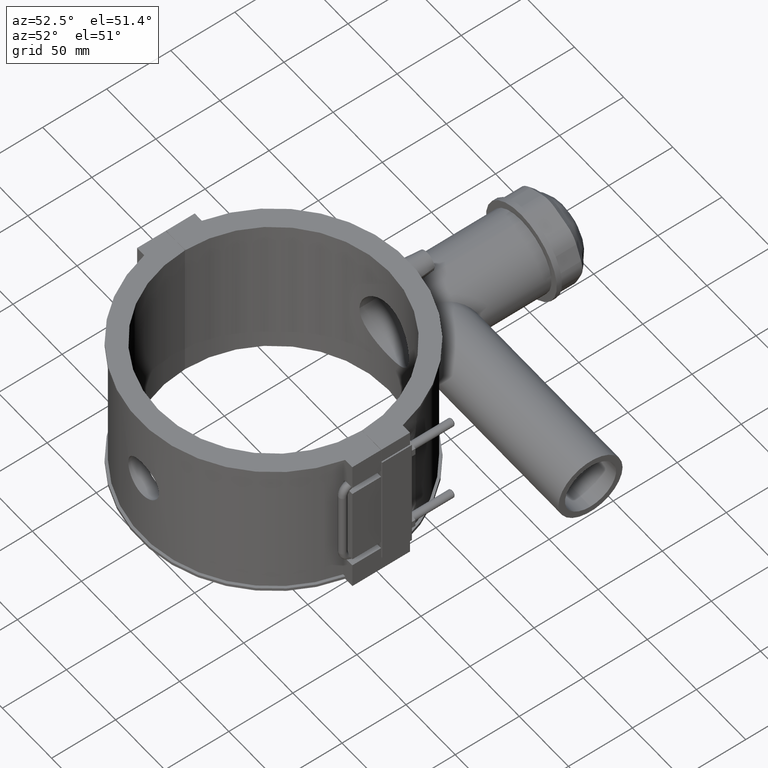
[diagram: clean part render]
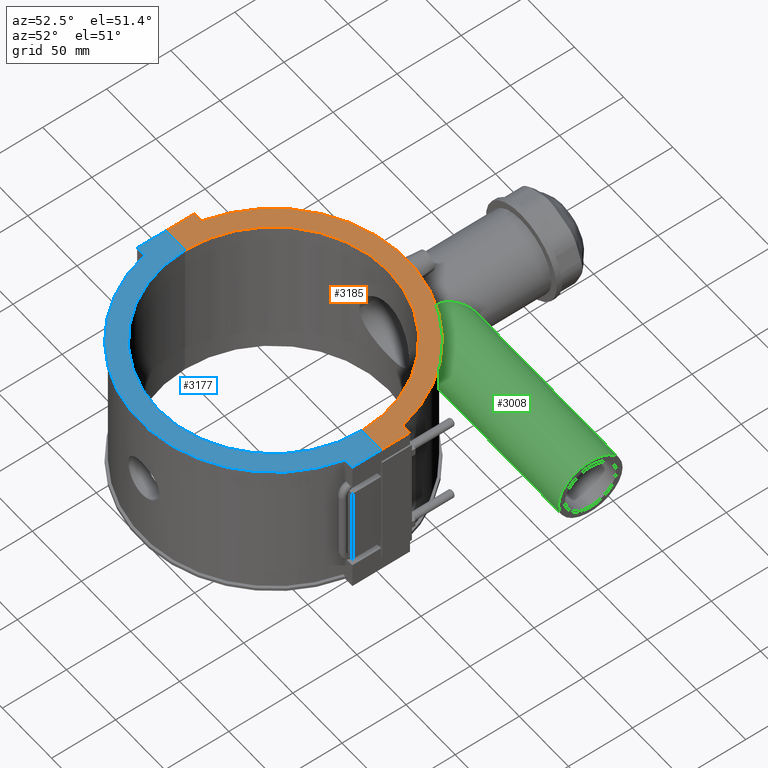
[diagram: same view with three faces highlighted in distinct colors, each labeled with its STEP entity id]
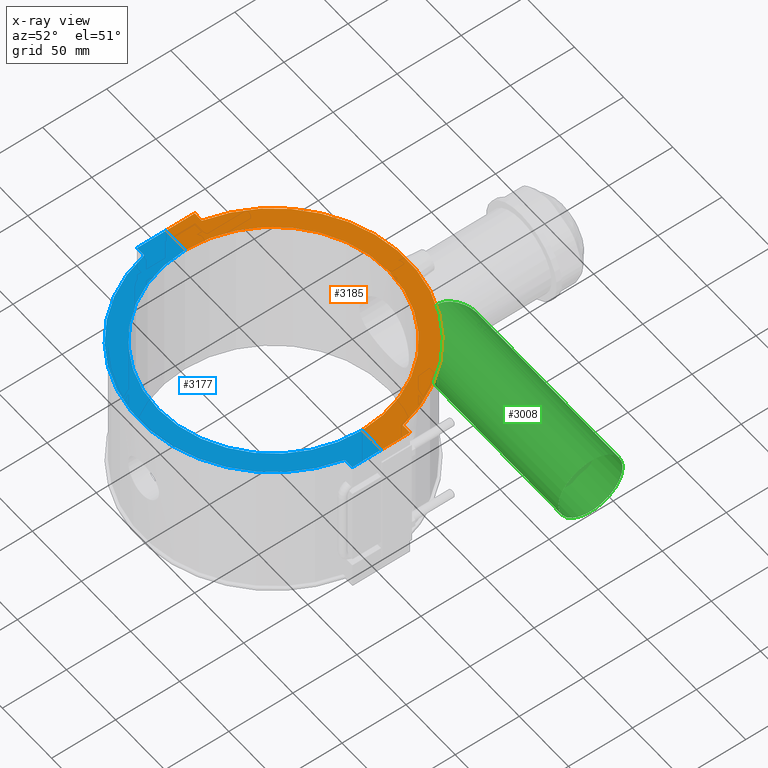
[diagram: x-ray of the same camera — body ghosted, the three highlighted faces saturated]
A machine part, auxiliary view with three faces highlighted in distinct colors.
The next image is the same camera in x-ray (body ghosted, the three faces saturated) — at least one of them is partly hidden behind the body in this view.
Their STEP definitions:

[orange] entity #3185 — the highlighted planar face has unit normal (0, 0, 1).
#135=LINE('',#5429,#414);
#168=LINE('',#5570,#447);
#211=LINE('',#5818,#490);
#213=LINE('',#5821,#492);
#268=LINE('',#6171,#547);
#313=LINE('',#6475,#592);
#414=VECTOR('',#3780,7.29534695523888);
#447=VECTOR('',#3837,22.45);
#490=VECTOR('',#3916,22.45);
#492=VECTOR('',#3920,7.29534695523888);
#547=VECTOR('',#4129,19.50001388889);
#592=VECTOR('',#4286,19.50001388889);
#707=PLANE('',#3466);
#753=CIRCLE('',#3287,104.652);
#810=CIRCLE('',#3463,90.);
#1043=FACE_OUTER_BOUND('',#1275,.T.);
#1275=EDGE_LOOP('',(#2950,#2951,#2952,#2953,#2954,#2955,#2956,#2957));
#1445=VERTEX_POINT('',#5403);
#1446=VERTEX_POINT('',#5404);
#1453=VERTEX_POINT('',#5427);
#1487=VERTEX_POINT('',#5568);
#1523=VERTEX_POINT('',#5815);
#1524=VERTEX_POINT('',#5817);
#1580=VERTEX_POINT('',#6169);
#1621=VERTEX_POINT('',#6474);
#1781=EDGE_CURVE('',#1445,#1446,#753,.T.);
#1794=EDGE_CURVE('',#1446,#1453,#135,.T.);
#1838=EDGE_CURVE('',#1453,#1487,#168,.T.);
#1890=EDGE_CURVE('',#1524,#1523,#211,.T.);
#1892=EDGE_CURVE('',#1523,#1445,#213,.T.);
#1982=EDGE_CURVE('',#1487,#1580,#268,.T.);
#2054=EDGE_CURVE('',#1621,#1524,#313,.T.);
#2060=EDGE_CURVE('',#1580,#1621,#810,.T.);
#2950=ORIENTED_EDGE('',*,*,#2054,.T.);
#2951=ORIENTED_EDGE('',*,*,#1890,.T.);
#2952=ORIENTED_EDGE('',*,*,#1892,.T.);
#2953=ORIENTED_EDGE('',*,*,#1781,.T.);
#2954=ORIENTED_EDGE('',*,*,#1794,.T.);
#2955=ORIENTED_EDGE('',*,*,#1838,.T.);
#2956=ORIENTED_EDGE('',*,*,#1982,.T.);
#2957=ORIENTED_EDGE('',*,*,#2060,.T.);
#3185=ADVANCED_FACE('',(#1043),#707,.T.);
#3287=AXIS2_PLACEMENT_3D('',#5405,#3754,#3755);
#3463=AXIS2_PLACEMENT_3D('',#6486,#4298,#4299);
#3466=AXIS2_PLACEMENT_3D('',#6489,#4304,#4305);
#3754=DIRECTION('center_axis',(0.,0.,1.));
#3755=DIRECTION('ref_axis',(0.976614427290077,0.21499828001376,0.));
#3780=DIRECTION('',(-1.,0.,0.));
#3837=DIRECTION('',(0.,-1.,0.));
#3916=DIRECTION('',(0.,1.,0.));
#3920=DIRECTION('',(-1.,0.,0.));
#4129=DIRECTION('',(1.,-1.58422235249023E-19,0.));
#4286=DIRECTION('',(1.,-1.58422235249023E-19,0.));
#4298=DIRECTION('center_axis',(0.,0.,-1.));
#4299=DIRECTION('ref_axis',(-1.,0.,0.));
#4304=DIRECTION('center_axis',(0.,0.,1.));
#4305=DIRECTION('ref_axis',(1.,0.,0.));
#5403=CARTESIAN_POINT('',(102.204653044761,22.5,59.));
#5404=CARTESIAN_POINT('',(-102.204653044761,22.5,59.));
#5405=CARTESIAN_POINT('Origin',(0.,0.,59.));
#5427=CARTESIAN_POINT('',(-109.5,22.5,59.));
#5429=CARTESIAN_POINT('',(-100.102497471342,22.5,59.));
#5568=CARTESIAN_POINT('',(-109.5,0.0499999999999989,59.));
#5570=CARTESIAN_POINT('',(-109.5,22.5,59.));
#5815=CARTESIAN_POINT('',(109.5,22.5,59.));
#5817=CARTESIAN_POINT('',(109.5,0.0499999999999989,59.));
#5818=CARTESIAN_POINT('',(109.5,-22.5,59.));
#5821=CARTESIAN_POINT('',(109.5,22.5,59.));
#6169=CARTESIAN_POINT('',(-89.99998611111,0.0499999999999989,59.));
#6171=CARTESIAN_POINT('',(1.79648330050455,0.0499999999999989,59.));
#6474=CARTESIAN_POINT('',(89.99998611111,0.0499999999999989,59.));
#6475=CARTESIAN_POINT('',(1.79648330050455,0.0499999999999989,59.));
#6486=CARTESIAN_POINT('Origin',(0.,0.,59.));
#6489=CARTESIAN_POINT('Origin',(-105.907033398991,1.00372537223288E-16,
59.));

[blue] entity #3177 — the highlighted planar face has unit normal (0, 0, 1).
#120=LINE('',#5360,#399);
#142=LINE('',#5473,#421);
#264=LINE('',#6164,#543);
#305=LINE('',#6453,#584);
#307=LINE('',#6456,#586);
#312=LINE('',#6470,#591);
#399=VECTOR('',#3741,7.29534695523888);
#421=VECTOR('',#3793,7.29534695523887);
#543=VECTOR('',#4123,22.45);
#584=VECTOR('',#4256,19.5000138888899);
#586=VECTOR('',#4260,22.45);
#591=VECTOR('',#4279,19.50001388889);
#700=PLANE('',#3456);
#755=CIRCLE('',#3291,104.652);
#809=CIRCLE('',#3454,90.);
#1035=FACE_OUTER_BOUND('',#1264,.T.);
#1264=EDGE_LOOP('',(#2889,#2890,#2891,#2892,#2893,#2894,#2895,#2896));
#1434=VERTEX_POINT('',#5357);
#1435=VERTEX_POINT('',#5359);
#1449=VERTEX_POINT('',#5415);
#1463=VERTEX_POINT('',#5471);
#1578=VERTEX_POINT('',#6163);
#1617=VERTEX_POINT('',#6450);
#1618=VERTEX_POINT('',#6452);
#1620=VERTEX_POINT('',#6464);
#1770=EDGE_CURVE('',#1435,#1434,#120,.T.);
#1787=EDGE_CURVE('',#1434,#1449,#755,.T.);
#1805=EDGE_CURVE('',#1449,#1463,#142,.T.);
#1978=EDGE_CURVE('',#1578,#1435,#264,.T.);
#2044=EDGE_CURVE('',#1618,#1617,#305,.T.);
#2046=EDGE_CURVE('',#1463,#1618,#307,.T.);
#2051=EDGE_CURVE('',#1617,#1620,#809,.T.);
#2053=EDGE_CURVE('',#1620,#1578,#312,.T.);
#2889=ORIENTED_EDGE('',*,*,#2044,.T.);
#2890=ORIENTED_EDGE('',*,*,#2051,.T.);
#2891=ORIENTED_EDGE('',*,*,#2053,.T.);
#2892=ORIENTED_EDGE('',*,*,#1978,.T.);
#2893=ORIENTED_EDGE('',*,*,#1770,.T.);
#2894=ORIENTED_EDGE('',*,*,#1787,.T.);
#2895=ORIENTED_EDGE('',*,*,#1805,.T.);
#2896=ORIENTED_EDGE('',*,*,#2046,.T.);
#3177=ADVANCED_FACE('',(#1035),#700,.T.);
#3291=AXIS2_PLACEMENT_3D('',#5416,#3766,#3767);
#3454=AXIS2_PLACEMENT_3D('',#6466,#4272,#4273);
#3456=AXIS2_PLACEMENT_3D('',#6469,#4277,#4278);
#3741=DIRECTION('',(1.,0.,0.));
#3766=DIRECTION('center_axis',(0.,0.,1.));
#3767=DIRECTION('ref_axis',(-0.976614427290077,-0.21499828001376,0.));
#3793=DIRECTION('',(1.,0.,0.));
#4123=DIRECTION('',(0.,-1.,0.));
#4256=DIRECTION('',(-1.,-1.58422235249023E-19,0.));
#4260=DIRECTION('',(0.,1.,0.));
#4272=DIRECTION('center_axis',(0.,0.,-1.));
#4273=DIRECTION('ref_axis',(-1.,0.,0.));
#4277=DIRECTION('center_axis',(0.,0.,1.));
#4278=DIRECTION('ref_axis',(1.,0.,0.));
#4279=DIRECTION('',(-1.,-1.58422235249023E-19,0.));
#5357=CARTESIAN_POINT('',(-102.204653044761,-22.5,59.));
#5359=CARTESIAN_POINT('',(-109.5,-22.5,59.));
#5360=CARTESIAN_POINT('',(-109.5,-22.5,59.));
#5415=CARTESIAN_POINT('',(102.204653044761,-22.5,59.));
#5416=CARTESIAN_POINT('Origin',(0.,0.,59.));
#5471=CARTESIAN_POINT('',(109.5,-22.5,59.));
#5473=CARTESIAN_POINT('',(100.102497471342,-22.5,59.));
#6163=CARTESIAN_POINT('',(-109.5,-0.0499999999999989,59.));
#6164=CARTESIAN_POINT('',(-109.5,22.5,59.));
#6450=CARTESIAN_POINT('',(89.99998611111,-0.0499999999999989,59.));
#6452=CARTESIAN_POINT('',(109.5,-0.0499999999999989,59.));
#6453=CARTESIAN_POINT('',(-107.703516699495,-0.0499999999999989,59.));
#6456=CARTESIAN_POINT('',(109.5,-22.5,59.));
#6464=CARTESIAN_POINT('',(-89.99998611111,-0.0499999999999989,59.));
#6466=CARTESIAN_POINT('Origin',(0.,0.,59.));
#6469=CARTESIAN_POINT('Origin',(-105.907033398991,1.00372537223288E-16,
59.));
#6470=CARTESIAN_POINT('',(-107.703516699495,-0.0499999999999989,59.));

[green] entity #3008 — the highlighted cylindrical surface (bore or boss wall) has radius 25 mm, axis along (1, 0, 0).
#710=CIRCLE('',#3194,25.0000000000001);
#815=FACE_BOUND('',#1051,.T.);
#866=FACE_OUTER_BOUND('',#1050,.T.);
#1050=EDGE_LOOP('',(#2068));
#1051=EDGE_LOOP('',(#2069,#2070,#2071,#2072,#2073,#2074,#2075,#2076));
#1278=B_SPLINE_CURVE_WITH_KNOTS('',3,(#4453,#4454,#4455,#4456),
 .UNSPECIFIED.,.F.,.F.,(4,4),(1.94718834367535,2.53355191397236),
 .UNSPECIFIED.);
#1279=B_SPLINE_CURVE_WITH_KNOTS('',3,(#4458,#4459,#4460,#4461,#4462,#4463,
#4464,#4465),.UNSPECIFIED.,.F.,.F.,(4,2,2,4),(-0.399917565897456,-0.245834815609726,
-0.090961325144743,0.),.UNSPECIFIED.);
#1280=B_SPLINE_CURVE_WITH_KNOTS('',3,(#4467,#4468,#4469,#4470,#4471,#4472),
 .UNSPECIFIED.,.F.,.F.,(4,2,4),(14.0216827865986,14.2802850417159,14.4360608003606),
 .UNSPECIFIED.);
#1281=B_SPLINE_CURVE_WITH_KNOTS('',3,(#4474,#4475,#4476,#4477,#4478,#4479,
#4480,#4481,#4482,#4483,#4484,#4485,#4486,#4487,#4488,#4489,#4490,#4491,
#4492,#4493,#4494,#4495,#4496,#4497,#4498,#4499),.UNSPECIFIED.,.F.,.F.,
(4,2,2,2,2,2,2,2,2,2,2,2,4),(2.25658553553262,3.15063915357858,3.67574567917501,
4.20085220477144,4.78915681816467,5.08330912486128,5.3774614315579,5.67161373825451,
5.96576604495112,6.55407065834435,7.07917718394078,7.60428370953721,8.49833732758317),
 .UNSPECIFIED.);
#1282=B_SPLINE_CURVE_WITH_KNOTS('',3,(#4501,#4502,#4503,#4504,#4505,#4506),
 .UNSPECIFIED.,.F.,.F.,(4,2,4),(9.21711137082291,9.37288712927724,9.63148938439456),
 .UNSPECIFIED.);
#1283=B_SPLINE_CURVE_WITH_KNOTS('',3,(#4508,#4509,#4510,#4511,#4512,#4513,
#4514,#4515),.UNSPECIFIED.,.F.,.F.,(4,2,2,4),(-0.347672715183728,-0.236591587451682,
-0.124103593527935,0.),.UNSPECIFIED.);
#1284=B_SPLINE_CURVE_WITH_KNOTS('',3,(#4517,#4518,#4519,#4520),
 .UNSPECIFIED.,.F.,.F.,(4,4),(1.18407515589116,1.77043872708731),
 .UNSPECIFIED.);
#1285=B_SPLINE_CURVE_WITH_KNOTS('',3,(#4521,#4522,#4523,#4524,#4525,#4526,
#4527,#4528,#4529,#4530,#4531,#4532,#4533,#4534,#4535,#4536,#4537,#4538,
#4539,#4540,#4541,#4542,#4543,#4544,#4545,#4546,#4547,#4548,#4549,#4550,
#4551,#4552,#4553,#4554,#4555,#4556,#4557,#4558,#4559,#4560,#4561,#4562,
#4563),.UNSPECIFIED.,.F.,.F.,(4,2,2,2,2,2,2,2,2,2,2,2,2,2,2,2,2,2,3,2,4),
(-9.07882718135008,-8.63333325207762,-8.11683467223829,-7.60033609239895,
-7.08383751255962,-6.56733893272028,-6.05084035288094,-5.55273459869049,
-5.05462884450004,-4.55652309030959,-4.05841733611914,-3.56031158192869,
-3.06220582773825,-2.5641000735478,-2.06599431935735,-1.54949573951801,
-1.03299715967867,-0.516498579839336,0.,0.516498579839337,0.961992509111792),
 .UNSPECIFIED.);
#1334=VERTEX_POINT('',#4449);
#1335=VERTEX_POINT('',#4451);
#1336=VERTEX_POINT('',#4452);
#1337=VERTEX_POINT('',#4457);
#1338=VERTEX_POINT('',#4466);
#1339=VERTEX_POINT('',#4473);
#1340=VERTEX_POINT('',#4500);
#1341=VERTEX_POINT('',#4507);
#1342=VERTEX_POINT('',#4516);
#1628=EDGE_CURVE('',#1334,#1334,#710,.T.);
#1629=EDGE_CURVE('',#1335,#1336,#1278,.T.);
#1630=EDGE_CURVE('',#1337,#1335,#1279,.T.);
#1631=EDGE_CURVE('',#1338,#1337,#1280,.T.);
#1632=EDGE_CURVE('',#1339,#1338,#1281,.T.);
#1633=EDGE_CURVE('',#1340,#1339,#1282,.T.);
#1634=EDGE_CURVE('',#1341,#1340,#1283,.T.);
#1635=EDGE_CURVE('',#1342,#1341,#1284,.T.);
#1636=EDGE_CURVE('',#1336,#1342,#1285,.T.);
#2068=ORIENTED_EDGE('',*,*,#1628,.F.);
#2069=ORIENTED_EDGE('',*,*,#1629,.F.);
#2070=ORIENTED_EDGE('',*,*,#1630,.F.);
#2071=ORIENTED_EDGE('',*,*,#1631,.F.);
#2072=ORIENTED_EDGE('',*,*,#1632,.F.);
#2073=ORIENTED_EDGE('',*,*,#1633,.F.);
#2074=ORIENTED_EDGE('',*,*,#1634,.F.);
#2075=ORIENTED_EDGE('',*,*,#1635,.F.);
#2076=ORIENTED_EDGE('',*,*,#1636,.F.);
#2960=CYLINDRICAL_SURFACE('',#3193,25.);
#3008=ADVANCED_FACE('',(#866,#815),#2960,.T.);
#3193=AXIS2_PLACEMENT_3D('',#4448,#3479,#3480);
#3194=AXIS2_PLACEMENT_3D('',#4450,#3481,#3482);
#3479=DIRECTION('center_axis',(1.,0.,0.));
#3480=DIRECTION('ref_axis',(0.,1.,0.));
#3481=DIRECTION('center_axis',(1.,0.,0.));
#3482=DIRECTION('ref_axis',(0.,0.,-1.));
#4448=CARTESIAN_POINT('Origin',(87.,114.,0.));
#4449=CARTESIAN_POINT('',(174.,139.,0.));
#4450=CARTESIAN_POINT('Origin',(174.,114.,0.));
#4451=CARTESIAN_POINT('',(26.0390825443467,103.478064323711,22.677937948273));
#4452=CARTESIAN_POINT('',(19.8835697729998,104.83504790423,23.25948522823));
#4453=CARTESIAN_POINT('Ctrl Pts',(26.0390825445299,103.478064323987,22.6779379492458));
#4454=CARTESIAN_POINT('Ctrl Pts',(24.0014070890792,103.990822266746,22.9158434459073));
#4455=CARTESIAN_POINT('Ctrl Pts',(21.9415562148266,104.444719308727,23.1056837642555));
#4456=CARTESIAN_POINT('Ctrl Pts',(19.8835697729998,104.83504790423,23.2594852282299));
#4457=CARTESIAN_POINT('',(28.8690310844612,101.255551963487,21.5076508304487));
#4458=CARTESIAN_POINT('Ctrl Pts',(28.8690310844567,101.255551963489,21.5076508304527));
#4459=CARTESIAN_POINT('Ctrl Pts',(28.7110717912732,101.613365164338,21.7196745322014));
#4460=CARTESIAN_POINT('Ctrl Pts',(28.4531356510489,101.97923203938,21.9236590630207));
#4461=CARTESIAN_POINT('Ctrl Pts',(27.7594558793051,102.655858106213,22.2813292452279));
#4462=CARTESIAN_POINT('Ctrl Pts',(27.3400955288756,102.949032849258,22.4262297428073));
#4463=CARTESIAN_POINT('Ctrl Pts',(26.6160077862129,103.298456260869,22.5941926141897));
#4464=CARTESIAN_POINT('Ctrl Pts',(26.3312535202135,103.404542808079,22.6438260003164));
#4465=CARTESIAN_POINT('Ctrl Pts',(26.0390825426459,103.478064324461,22.6779379494658));
#4466=CARTESIAN_POINT('',(30.4602732573638,97.974138184974,19.18780219531));
#4467=CARTESIAN_POINT('Ctrl Pts',(30.4602732573746,97.9741381849857,19.1878021953028));
#4468=CARTESIAN_POINT('Ctrl Pts',(30.1279892077068,98.6057087718771,19.7152968426276));
#4469=CARTESIAN_POINT('Ctrl Pts',(29.7919511687765,99.2713067686501,20.2181107338781));
#4470=CARTESIAN_POINT('Ctrl Pts',(29.2610398762957,100.385883022401,20.9740826498605));
#4471=CARTESIAN_POINT('Ctrl Pts',(29.0631790300271,100.815763354394,21.2470522592819));
#4472=CARTESIAN_POINT('Ctrl Pts',(28.8690310844586,101.255551963485,21.5076508304501));
#4473=CARTESIAN_POINT('',(30.4602732573638,97.974138184974,-19.18780219531));
#4474=CARTESIAN_POINT('Ctrl Pts',(30.4602732573562,97.9741381849679,-19.187802195288));
#4475=CARTESIAN_POINT('Ctrl Pts',(33.3308787088855,97.0816636188476,-18.4423976969246));
#4476=CARTESIAN_POINT('Ctrl Pts',(36.0710275565642,96.0892182921983,-17.512734442597));
#4477=CARTESIAN_POINT('Ctrl Pts',(40.0977618425418,94.4537748380714,-15.614248201846));
#4478=CARTESIAN_POINT('Ctrl Pts',(41.5167735536414,93.8363776368963,-14.8202350092895));
#4479=CARTESIAN_POINT('Ctrl Pts',(44.1802836881446,92.6121524728851,-12.9911898007101));
#4480=CARTESIAN_POINT('Ctrl Pts',(45.4257882714494,92.0046951291515,-11.9580449241919));
#4481=CARTESIAN_POINT('Ctrl Pts',(47.8204432890776,90.7853581144025,-9.39813959257157));
#4482=CARTESIAN_POINT('Ctrl Pts',(49.0023681257725,90.1464453502491,-7.72412429555928));
#4483=CARTESIAN_POINT('Ctrl Pts',(50.2139434714464,89.4736454323693,-4.93675454703734));
#4484=CARTESIAN_POINT('Ctrl Pts',(50.5279047573037,89.295846607583,-3.96195121773664));
#4485=CARTESIAN_POINT('Ctrl Pts',(50.944312785493,89.0589376482573,-1.98385013412836));
#4486=CARTESIAN_POINT('Ctrl Pts',(51.0466453354185,89.,-0.980507688988712));
#4487=CARTESIAN_POINT('Ctrl Pts',(51.0466453354185,89.,0.980507688988712));
#4488=CARTESIAN_POINT('Ctrl Pts',(50.944312785493,89.0589376482573,1.98385013412836));
#4489=CARTESIAN_POINT('Ctrl Pts',(50.5279047573037,89.295846607583,3.96195121773664));
#4490=CARTESIAN_POINT('Ctrl Pts',(50.2139434714463,89.4736454323693,4.93675454703734));
#4491=CARTESIAN_POINT('Ctrl Pts',(49.0023681257725,90.1464453502491,7.72412429555928));
#4492=CARTESIAN_POINT('Ctrl Pts',(47.8204432890776,90.7853581144025,9.39813959257157));
#4493=CARTESIAN_POINT('Ctrl Pts',(45.4257882714494,92.0046951291515,11.9580449241919));
#4494=CARTESIAN_POINT('Ctrl Pts',(44.1802836881446,92.6121524728851,12.9911898007101));
#4495=CARTESIAN_POINT('Ctrl Pts',(41.5167735536414,93.8363776368963,14.8202350092895));
#4496=CARTESIAN_POINT('Ctrl Pts',(40.0977618425418,94.4537748380714,15.614248201846));
#4497=CARTESIAN_POINT('Ctrl Pts',(36.0710275565642,96.0892182921983,17.512734442597));
#4498=CARTESIAN_POINT('Ctrl Pts',(33.3308787088855,97.0816636188476,18.4423976969246));
#4499=CARTESIAN_POINT('Ctrl Pts',(30.4602732573562,97.9741381849679,19.187802195288));
#4500=CARTESIAN_POINT('',(28.869031086129,101.255551962622,-21.5076508289443));
#4501=CARTESIAN_POINT('Ctrl Pts',(28.8690310851702,101.255551961873,-21.507650829495));
#4502=CARTESIAN_POINT('Ctrl Pts',(29.0631790305106,100.815763353344,-21.2470522586149));
#4503=CARTESIAN_POINT('Ctrl Pts',(29.2610398765396,100.385883021889,-20.9740826495133));
#4504=CARTESIAN_POINT('Ctrl Pts',(29.7919511687765,99.2713067686501,-20.2181107338781));
#4505=CARTESIAN_POINT('Ctrl Pts',(30.1279892077068,98.6057087718771,-19.7152968426276));
#4506=CARTESIAN_POINT('Ctrl Pts',(30.4602732573746,97.9741381849857,-19.1878021953028));
#4507=CARTESIAN_POINT('',(26.0390825528094,103.478064319977,-22.6779379423387));
#4508=CARTESIAN_POINT('Ctrl Pts',(26.0390825539036,103.478064321628,-22.6779379481514));
#4509=CARTESIAN_POINT('Ctrl Pts',(26.4478775089893,103.375195701342,-22.6302097548542));
#4510=CARTESIAN_POINT('Ctrl Pts',(26.8429313223902,103.208606329872,-22.5521463065315));
#4511=CARTESIAN_POINT('Ctrl Pts',(27.5640212389326,102.790629200032,-22.3473678517386));
#4512=CARTESIAN_POINT('Ctrl Pts',(27.8965341897007,102.533913864131,-22.2179132167586));
#4513=CARTESIAN_POINT('Ctrl Pts',(28.4894844325383,101.927281373486,-21.894735873788));
#4514=CARTESIAN_POINT('Ctrl Pts',(28.7221565623899,101.588255673443,-21.7047957988402));
#4515=CARTESIAN_POINT('Ctrl Pts',(28.8690310844567,101.255551963489,-21.5076508304527));
#4516=CARTESIAN_POINT('',(19.8835697729998,104.83504790423,-23.25948522823));
#4517=CARTESIAN_POINT('Ctrl Pts',(19.8835697729998,104.83504790423,-23.2594852282299));
#4518=CARTESIAN_POINT('Ctrl Pts',(21.941552355246,104.444720040756,-23.1056840526972));
#4519=CARTESIAN_POINT('Ctrl Pts',(24.0014021631551,103.990823506495,-22.9158440211815));
#4520=CARTESIAN_POINT('Ctrl Pts',(26.0390825539036,103.478064321628,-22.6779379481514));
#4521=CARTESIAN_POINT('Ctrl Pts',(19.8835697729998,104.83504790423,23.25948522823));
#4522=CARTESIAN_POINT('Ctrl Pts',(19.2766643708062,106.151742828986,23.7783034992156));
#4523=CARTESIAN_POINT('Ctrl Pts',(18.7465473323232,107.525198698735,24.1901756553827));
#4524=CARTESIAN_POINT('Ctrl Pts',(17.9043339506845,110.580656833605,24.8216488174023));
#4525=CARTESIAN_POINT('Ctrl Pts',(17.6453960000902,112.278338067202,25.));
#4526=CARTESIAN_POINT('Ctrl Pts',(17.6453960000902,115.721661932798,25.));
#4527=CARTESIAN_POINT('Ctrl Pts',(17.9043339506845,117.419343166395,24.8216488174023));
#4528=CARTESIAN_POINT('Ctrl Pts',(18.8087110875496,120.700324613695,24.1435666321451));
#4529=CARTESIAN_POINT('Ctrl Pts',(19.4491465104591,122.285016438421,23.6439053932152));
#4530=CARTESIAN_POINT('Ctrl Pts',(20.9095930159152,125.295276106832,22.3627478630509));
#4531=CARTESIAN_POINT('Ctrl Pts',(21.7290170781198,126.722518877908,21.5800214015293));
#4532=CARTESIAN_POINT('Ctrl Pts',(23.3776041358606,129.36960239019,19.7821923044427));
#4533=CARTESIAN_POINT('Ctrl Pts',(24.2066765989964,130.588993835109,18.766345224218));
#4534=CARTESIAN_POINT('Ctrl Pts',(25.7202641563971,132.727576826744,16.6277622325837));
#4535=CARTESIAN_POINT('Ctrl Pts',(26.4655478378992,133.733461294011,15.4320705950653));
#4536=CARTESIAN_POINT('Ctrl Pts',(27.8379513570982,135.539169162758,12.7915006739807));
#4537=CARTESIAN_POINT('Ctrl Pts',(28.4645948092368,136.339013666623,11.3463892520938));
#4538=CARTESIAN_POINT('Ctrl Pts',(29.5017254590385,137.64635667487,8.28383526409027));
#4539=CARTESIAN_POINT('Ctrl Pts',(29.9129488161225,138.154992300218,6.66278751453463));
#4540=CARTESIAN_POINT('Ctrl Pts',(30.4622285480436,138.831965573838,3.35110075354027));
#4541=CARTESIAN_POINT('Ctrl Pts',(30.6,139.,1.66035251396817));
#4542=CARTESIAN_POINT('Ctrl Pts',(30.6,139.,-1.66035251396816));
#4543=CARTESIAN_POINT('Ctrl Pts',(30.4622285480435,138.831965573838,-3.35110075354025));
#4544=CARTESIAN_POINT('Ctrl Pts',(29.9129488161225,138.154992300218,-6.66278751453461));
#4545=CARTESIAN_POINT('Ctrl Pts',(29.5017254590385,137.64635667487,-8.28383526409025));
#4546=CARTESIAN_POINT('Ctrl Pts',(28.4645948092368,136.339013666623,-11.3463892520937));
#4547=CARTESIAN_POINT('Ctrl Pts',(27.8379513570982,135.539169162758,-12.7915006739807));
#4548=CARTESIAN_POINT('Ctrl Pts',(26.4655478378992,133.733461294012,-15.4320705950653));
#4549=CARTESIAN_POINT('Ctrl Pts',(25.7202641563971,132.727576826744,-16.6277622325837));
#4550=CARTESIAN_POINT('Ctrl Pts',(24.2066765989964,130.588993835109,-18.766345224218));
#4551=CARTESIAN_POINT('Ctrl Pts',(23.3776041358606,129.36960239019,-19.7821923044427));
#4552=CARTESIAN_POINT('Ctrl Pts',(21.7290170781198,126.722518877908,-21.5800214015293));
#4553=CARTESIAN_POINT('Ctrl Pts',(20.9095930159152,125.295276106832,-22.3627478630509));
#4554=CARTESIAN_POINT('Ctrl Pts',(19.4491465104591,122.285016438421,-23.6439053932152));
#4555=CARTESIAN_POINT('Ctrl Pts',(18.8087110875496,120.700324613695,-24.1435666321451));
#4556=CARTESIAN_POINT('Ctrl Pts',(17.9043339506845,117.419343166395,-24.8216488174023));
#4557=CARTESIAN_POINT('Ctrl Pts',(17.6453960000902,115.721661932798,-25.));
#4558=CARTESIAN_POINT('Ctrl Pts',(17.6453960000902,114.,-25.));
#4559=CARTESIAN_POINT('Ctrl Pts',(17.6453960000902,112.278338067202,-25.));
#4560=CARTESIAN_POINT('Ctrl Pts',(17.9043339506845,110.580656833605,-24.8216488174023));
#4561=CARTESIAN_POINT('Ctrl Pts',(18.7465473323232,107.525198698735,-24.1901756553827));
#4562=CARTESIAN_POINT('Ctrl Pts',(19.2766643708062,106.151742828986,-23.7783034992156));
#4563=CARTESIAN_POINT('Ctrl Pts',(19.8835697729998,104.83504790423,-23.25948522823));